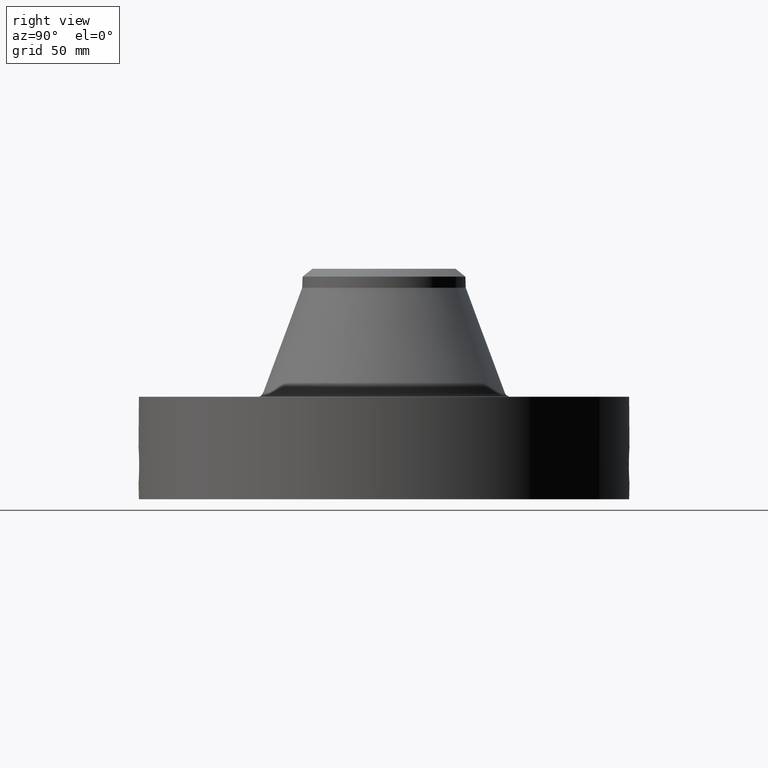
[diagram: clean part render]
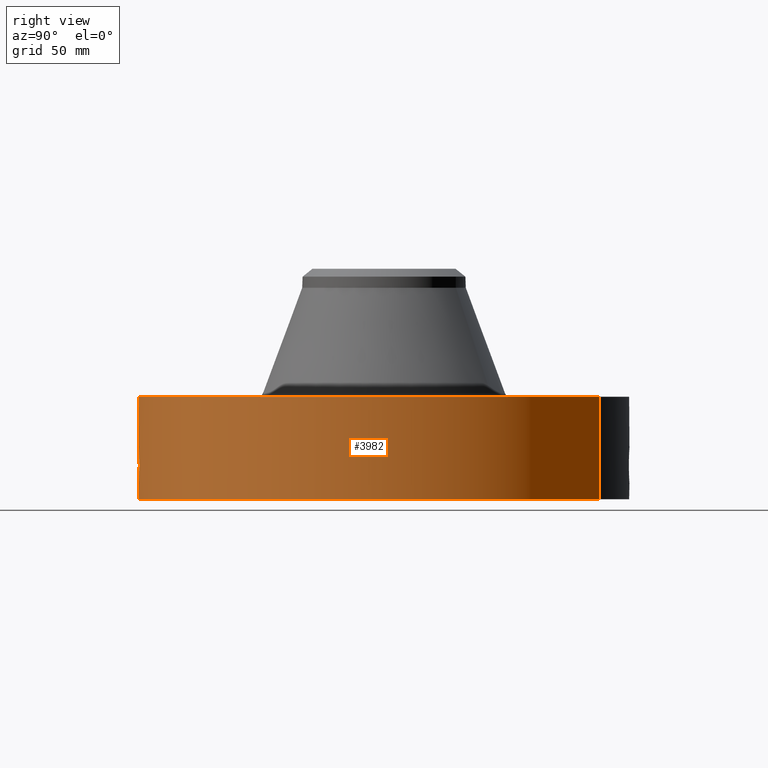
[diagram: same view with one face highlighted and labeled with its STEP entity id]
A machine part, right view. The second image highlights one B-rep face of the part: STEP entity #3982.
In plain terms, the highlighted cylindrical surface (partial cylindrical patch) has radius 133.35 mm, axis along (0, 0, -1).
Its self-contained STEP definition (entity closure, byte-faithful):
#2918=AXIS2_PLACEMENT_3D('Circle Axis2P3D',#2916,#2917,$) ;
#3771=AXIS2_PLACEMENT_3D('Cylinder Axis2P3D',#3768,#3769,#3770) ;
#3887=AXIS2_PLACEMENT_3D('Circle Axis2P3D',#3885,#3886,$) ;
#2916=CARTESIAN_POINT('Axis2P3D Location',(0.,0.,2.19200000001)) ;
#2920=CARTESIAN_POINT('Vertex',(2.51698407768,4.60730844994,2.19200000001)) ;
#2922=CARTESIAN_POINT('Vertex',(-2.51698407768,-4.60730844994,2.19200000001)) ;
#3768=CARTESIAN_POINT('Axis2P3D Location',(0.,0.,2.46600000001)) ;
#3777=CARTESIAN_POINT('Vertex',(-2.51698407768,-4.60730844994,5.59482469102E-016)) ;
#3779=CARTESIAN_POINT('Vertex',(2.51698407768,4.60730844994,5.59482469102E-016)) ;
#3782=CARTESIAN_POINT('Line Origine',(-2.51698407768,-4.60730844994,1.096)) ;
#3787=CARTESIAN_POINT('Line Origine',(2.51698407768,4.60730844994,1.096)) ;
#3885=CARTESIAN_POINT('Axis2P3D Location',(0.,0.,5.59482469102E-016)) ;
#3897=CARTESIAN_POINT('Control Point',(0.0642565419764,-5.24960675642,1.09822782548)) ;
#3898=CARTESIAN_POINT('Control Point',(0.0433130365796,-5.24986311033,1.10210062824)) ;
#3899=CARTESIAN_POINT('Control Point',(0.0220171462165,-5.24999704247,1.10407525058)) ;
#3900=CARTESIAN_POINT('Control Point',(0.000716901040002,-5.24999995107,1.10411849726)) ;
#3901=CARTESIAN_POINT('Vertex',(0.0642341499509,-5.24960730474,1.0982322716)) ;
#3903=CARTESIAN_POINT('Vertex',(0.000716698655925,-5.2499999511,1.10411850752)) ;
#3907=CARTESIAN_POINT('Control Point',(0.0642340213415,-5.24960703203,1.09823162484)) ;
#3908=CARTESIAN_POINT('Control Point',(0.101367608454,-5.24915266666,1.09265370348)) ;
#3909=CARTESIAN_POINT('Control Point',(0.137571702372,-5.24830194678,1.08041619257)) ;
#3910=CARTESIAN_POINT('Control Point',(0.17070982714,-5.2472238522,1.06251500554)) ;
#3911=CARTESIAN_POINT('Vertex',(0.17070982714,-5.2472238522,1.06251500554)) ;
#3915=CARTESIAN_POINT('Control Point',(0.0292241829011,-5.24991866102,0.341058914193)) ;
#3916=CARTESIAN_POINT('Control Point',(0.0757986336261,-5.24965939981,0.347030416454)) ;
#3917=CARTESIAN_POINT('Control Point',(0.121210187807,-5.24889011667,0.360520752787)) ;
#3918=CARTESIAN_POINT('Control Point',(0.163721858527,-5.24767091939,0.381165617426)) ;
#3919=CARTESIAN_POINT('Control Point',(0.257613224001,-5.24410928576,0.446326122401)) ;
#3920=CARTESIAN_POINT('Control Point',(0.321981442047,-5.24027286039,0.539904600064)) ;
#3921=CARTESIAN_POINT('Control Point',(0.347591824532,-5.23849692581,0.601510173645)) ;
#3922=CARTESIAN_POINT('Control Point',(0.367018684609,-5.23715940473,0.698798378093)) ;
#3923=CARTESIAN_POINT('Control Point',(0.357452270055,-5.2378180432,0.795206744493)) ;
#3924=CARTESIAN_POINT('Control Point',(0.350906096158,-5.23826917076,0.827331385493)) ;
#3925=CARTESIAN_POINT('Control Point',(0.326667880154,-5.23988640012,0.904448039409)) ;
#3926=CARTESIAN_POINT('Control Point',(0.283222063855,-5.24246130971,0.973052153706)) ;
#3927=CARTESIAN_POINT('Control Point',(0.250890417213,-5.24419240888,1.00949215106)) ;
#3928=CARTESIAN_POINT('Control Point',(0.212821116443,-5.24585383043,1.03976652349)) ;
#3929=CARTESIAN_POINT('Control Point',(0.17070982714,-5.2472238522,1.06251500554)) ;
#3930=CARTESIAN_POINT('Vertex',(0.0292241829011,-5.24991866102,0.341058914193)) ;
#3934=CARTESIAN_POINT('Control Point',(0.0292241829011,-5.24991866102,0.341058914193)) ;
#3935=CARTESIAN_POINT('Control Point',(0.0194758749729,-5.24997292593,0.340856457999)) ;
#3936=CARTESIAN_POINT('Control Point',(0.00972559935064,-5.25000000508,0.340961817465)) ;
#3937=CARTESIAN_POINT('Control Point',(-2.72878354286E-006,-5.25000000002,0.341374667804)) ;
#3938=CARTESIAN_POINT('Vertex',(-2.72878353673E-006,-5.25000000002,0.341374667804)) ;
#3942=CARTESIAN_POINT('Control Point',(-0.194329401017,-5.24640220381,0.3942906393)) ;
#3943=CARTESIAN_POINT('Control Point',(-0.134784268459,-5.24860778575,0.362218242374)) ;
#3944=CARTESIAN_POINT('Control Point',(-0.0678212209568,-5.24999996477,0.344252745217)) ;
#3945=CARTESIAN_POINT('Control Point',(-2.72878352421E-006,-5.25000000002,0.341374667804)) ;
#3946=CARTESIAN_POINT('Vertex',(-0.194329401017,-5.24640220381,0.3942906393)) ;
#3950=CARTESIAN_POINT('Control Point',(-0.194329401017,-5.24640220381,0.3942906393)) ;
#3951=CARTESIAN_POINT('Control Point',(-0.245491770491,-5.24450712367,0.421847883826)) ;
#3952=CARTESIAN_POINT('Control Point',(-0.292059501583,-5.24215771296,0.457986214458)) ;
#3953=CARTESIAN_POINT('Control Point',(-0.332013374847,-5.23964261044,0.502108497475)) ;
#3954=CARTESIAN_POINT('Control Point',(-0.391712447473,-5.23546450526,0.600666519045)) ;
#3955=CARTESIAN_POINT('Control Point',(-0.411028559288,-5.23387653346,0.713977122026)) ;
#3956=CARTESIAN_POINT('Control Point',(-0.409563646033,-5.23399901153,0.770037204718)) ;
#3957=CARTESIAN_POINT('Control Point',(-0.384642380071,-5.23601093276,0.880973427667)) ;
#3958=CARTESIAN_POINT('Control Point',(-0.32141052371,-5.24032086363,0.97370400088)) ;
#3959=CARTESIAN_POINT('Control Point',(-0.28063240111,-5.24278573037,1.01396109153)) ;
#3960=CARTESIAN_POINT('Control Point',(-0.201889943156,-5.24656144924,1.06790108)) ;
#3961=CARTESIAN_POINT('Control Point',(-0.112894729198,-5.24898233185,1.09620969237)) ;
#3962=CARTESIAN_POINT('Control Point',(-0.0753580381951,-5.24966520022,1.10335683808)) ;
#3963=CARTESIAN_POINT('Control Point',(-0.0374937145192,-5.25000018475,1.10599233718)) ;
#3964=CARTESIAN_POINT('Control Point',(2.58579355217E-005,-5.24999999996,1.10415298436)) ;
#3965=CARTESIAN_POINT('Vertex',(2.585793552E-005,-5.24999999996,1.10415298436)) ;
#3969=CARTESIAN_POINT('Control Point',(0.000716698644565,-5.2499999511,1.10411850751)) ;
#3970=CARTESIAN_POINT('Control Point',(0.000371301620964,-5.24999999825,1.10413604941)) ;
#3971=CARTESIAN_POINT('Control Point',(2.58579428142E-005,-5.24999999996,1.10415298436)) ;
#2917=DIRECTION('Axis2P3D Direction',(0.,0.,-0.0393700787402)) ;
#3769=DIRECTION('Axis2P3D Direction',(0.,0.,-0.0393700787402)) ;
#3770=DIRECTION('Axis2P3D XDirection',(0.0188750212049,0.0345504945626,0.)) ;
#3783=DIRECTION('Vector Direction',(0.,0.,-0.0393700787402)) ;
#3788=DIRECTION('Vector Direction',(0.,0.,-0.0393700787402)) ;
#3886=DIRECTION('Axis2P3D Direction',(0.,0.,-0.0393700787402)) ;
#3784=VECTOR('Line Direction',#3783,0.0393700787402) ;
#3789=VECTOR('Line Direction',#3788,0.0393700787402) ;
#3891=ORIENTED_EDGE('',*,*,#3889,.F.) ;
#3892=ORIENTED_EDGE('',*,*,#3791,.T.) ;
#3893=ORIENTED_EDGE('',*,*,#2924,.T.) ;
#3894=ORIENTED_EDGE('',*,*,#3786,.F.) ;
#3974=ORIENTED_EDGE('',*,*,#3905,.F.) ;
#3975=ORIENTED_EDGE('',*,*,#3913,.T.) ;
#3976=ORIENTED_EDGE('',*,*,#3932,.F.) ;
#3977=ORIENTED_EDGE('',*,*,#3940,.T.) ;
#3978=ORIENTED_EDGE('',*,*,#3948,.F.) ;
#3979=ORIENTED_EDGE('',*,*,#3967,.T.) ;
#3980=ORIENTED_EDGE('',*,*,#3972,.F.) ;
#3981=FACE_BOUND('',#3973,.T.) ;
#3982=ADVANCED_FACE('PartBody',(#3895,#3981),#3772,.T.) ;
#3896=B_SPLINE_CURVE_WITH_KNOTS('',3,(#3897,#3898,#3899,#3900),.UNSPECIFIED.,.F.,.U.,(4,4),(4.15880365559,6.52187522396),.UNSPECIFIED.) ;
#3906=B_SPLINE_CURVE_WITH_KNOTS('',3,(#3907,#3908,#3909,#3910),.UNSPECIFIED.,.F.,.U.,(4,4),(0.,4.21910835879),.UNSPECIFIED.) ;
#3914=B_SPLINE_CURVE_WITH_KNOTS('',5,(#3915,#3916,#3917,#3918,#3919,#3920,#3921,#3922,#3923,#3924,#3925,#3926,#3927,#3928,#3929),.UNSPECIFIED.,.F.,.U.,(6,3,3,3,6),(0.,8.16106559946,20.0085203335,26.0732220461,35.0091577364),.UNSPECIFIED.) ;
#3933=B_SPLINE_CURVE_WITH_KNOTS('',3,(#3934,#3935,#3936,#3937),.UNSPECIFIED.,.F.,.U.,(4,4),(0.,1.01672404367),.UNSPECIFIED.) ;
#3941=B_SPLINE_CURVE_WITH_KNOTS('',3,(#3942,#3943,#3944,#3945),.UNSPECIFIED.,.F.,.U.,(4,4),(0.,7.08782543108),.UNSPECIFIED.) ;
#3949=B_SPLINE_CURVE_WITH_KNOTS('',5,(#3950,#3951,#3952,#3953,#3954,#3955,#3956,#3957,#3958,#3959,#3960,#3961,#3962,#3963,#3964),.UNSPECIFIED.,.F.,.U.,(6,3,3,3,6),(0.,10.1500023514,19.6791327417,29.7545967915,36.7677817866),.UNSPECIFIED.) ;
#3968=B_SPLINE_CURVE_WITH_KNOTS('',2,(#3969,#3970,#3971),.UNSPECIFIED.,.F.,.U.,(3,3),(1.08994559752,1.11577382963),.UNSPECIFIED.) ;
#2919=CIRCLE('generated circle',#2918,5.25000000002) ;
#3888=CIRCLE('generated circle',#3887,5.25000000002) ;
#3772=CYLINDRICAL_SURFACE('generated cylinder',#3771,5.25000000002) ;
#2924=EDGE_CURVE('',#2921,#2923,#2919,.T.) ;
#3786=EDGE_CURVE('',#3778,#2923,#3785,.F.) ;
#3791=EDGE_CURVE('',#3780,#2921,#3790,.F.) ;
#3889=EDGE_CURVE('',#3780,#3778,#3888,.T.) ;
#3905=EDGE_CURVE('',#3902,#3904,#3896,.T.) ;
#3913=EDGE_CURVE('',#3902,#3912,#3906,.T.) ;
#3932=EDGE_CURVE('',#3931,#3912,#3914,.T.) ;
#3940=EDGE_CURVE('',#3931,#3939,#3933,.T.) ;
#3948=EDGE_CURVE('',#3947,#3939,#3941,.T.) ;
#3967=EDGE_CURVE('',#3947,#3966,#3949,.T.) ;
#3972=EDGE_CURVE('',#3904,#3966,#3968,.T.) ;
#3890=EDGE_LOOP('',(#3891,#3892,#3893,#3894)) ;
#3973=EDGE_LOOP('',(#3974,#3975,#3976,#3977,#3978,#3979,#3980)) ;
#3895=FACE_OUTER_BOUND('',#3890,.T.) ;
#3785=LINE('Line',#3782,#3784) ;
#3790=LINE('Line',#3787,#3789) ;
#2921=VERTEX_POINT('',#2920) ;
#2923=VERTEX_POINT('',#2922) ;
#3778=VERTEX_POINT('',#3777) ;
#3780=VERTEX_POINT('',#3779) ;
#3902=VERTEX_POINT('',#3901) ;
#3904=VERTEX_POINT('',#3903) ;
#3912=VERTEX_POINT('',#3911) ;
#3931=VERTEX_POINT('',#3930) ;
#3939=VERTEX_POINT('',#3938) ;
#3947=VERTEX_POINT('',#3946) ;
#3966=VERTEX_POINT('',#3965) ;